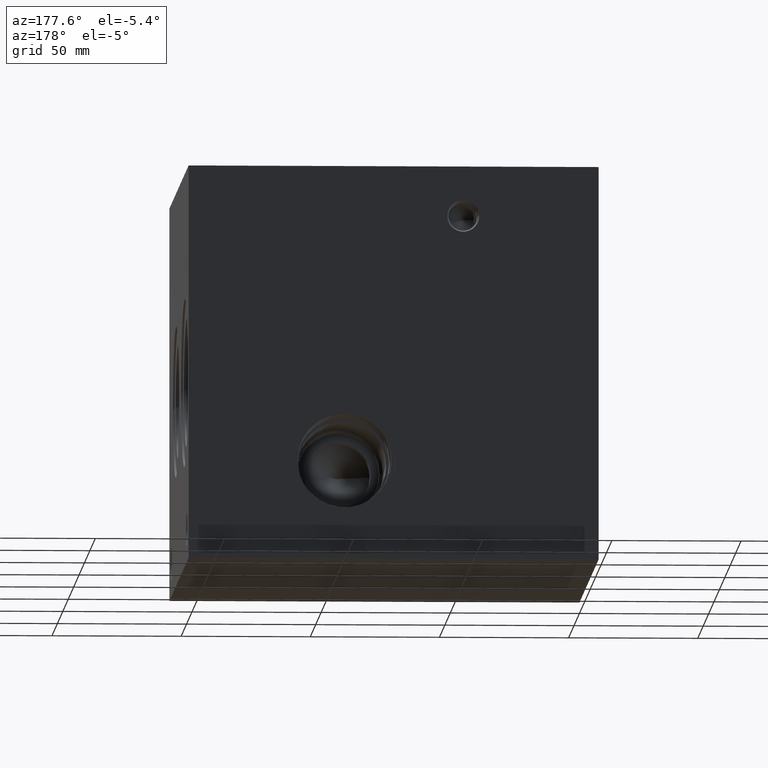
[diagram: clean part render]
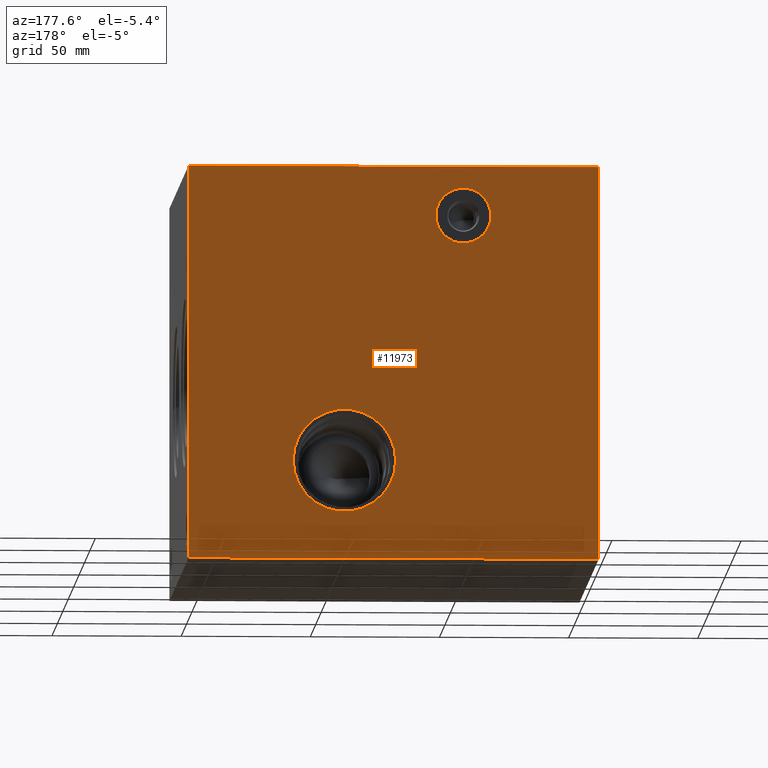
[diagram: same view with one face highlighted and labeled with its STEP entity id]
A machine part, auxiliary view. The second image highlights one B-rep face of the part: STEP entity #11973.
In plain terms, the highlighted planar face has unit normal (0, 1, 0).
Its self-contained STEP definition (entity closure, byte-faithful):
#162=CIRCLE('',#12328,19.8374);
#163=CIRCLE('',#12329,19.8374);
#195=CIRCLE('',#12379,10.6426);
#196=CIRCLE('',#12380,10.6426);
#498=FACE_BOUND('',#2177,.T.);
#499=FACE_BOUND('',#2178,.T.);
#857=PLANE('',#12736);
#1475=FACE_OUTER_BOUND('',#2176,.T.);
#2176=EDGE_LOOP('',(#10714,#10715,#10716,#10717));
#2177=EDGE_LOOP('',(#10718,#10719));
#2178=EDGE_LOOP('',(#10720,#10721));
#2230=LINE('',#15540,#3322);
#2292=LINE('',#15818,#3384);
#3287=LINE('',#20611,#4379);
#3288=LINE('',#20612,#4380);
#3322=VECTOR('',#12796,10.);
#3384=VECTOR('',#12912,10.);
#4379=VECTOR('',#15323,10.);
#4380=VECTOR('',#15324,10.);
#4702=VERTEX_POINT('',#15537);
#4703=VERTEX_POINT('',#15539);
#4761=VERTEX_POINT('',#15811);
#4764=VERTEX_POINT('',#15816);
#5527=VERTEX_POINT('',#19796);
#5528=VERTEX_POINT('',#19797);
#5562=VERTEX_POINT('',#19896);
#5563=VERTEX_POINT('',#19897);
#5856=EDGE_CURVE('',#4702,#4703,#2230,.T.);
#5942=EDGE_CURVE('',#4761,#4764,#2292,.T.);
#7081=EDGE_CURVE('',#5527,#5528,#162,.T.);
#7082=EDGE_CURVE('',#5528,#5527,#163,.T.);
#7128=EDGE_CURVE('',#5562,#5563,#195,.T.);
#7129=EDGE_CURVE('',#5563,#5562,#196,.T.);
#7460=EDGE_CURVE('',#4702,#4761,#3287,.T.);
#7461=EDGE_CURVE('',#4703,#4764,#3288,.T.);
#10714=ORIENTED_EDGE('',*,*,#7460,.T.);
#10715=ORIENTED_EDGE('',*,*,#5942,.T.);
#10716=ORIENTED_EDGE('',*,*,#7461,.F.);
#10717=ORIENTED_EDGE('',*,*,#5856,.F.);
#10718=ORIENTED_EDGE('',*,*,#7081,.T.);
#10719=ORIENTED_EDGE('',*,*,#7082,.T.);
#10720=ORIENTED_EDGE('',*,*,#7128,.T.);
#10721=ORIENTED_EDGE('',*,*,#7129,.T.);
#11973=ADVANCED_FACE('',(#1475,#498,#499),#857,.T.);
#12328=AXIS2_PLACEMENT_3D('',#19798,#14379,#14380);
#12329=AXIS2_PLACEMENT_3D('',#19799,#14381,#14382);
#12379=AXIS2_PLACEMENT_3D('',#19898,#14495,#14496);
#12380=AXIS2_PLACEMENT_3D('',#19899,#14497,#14498);
#12736=AXIS2_PLACEMENT_3D('',#20610,#15321,#15322);
#12796=DIRECTION('',(0.,0.,1.));
#12912=DIRECTION('',(0.,0.,1.));
#14379=DIRECTION('center_axis',(0.,-1.,0.));
#14380=DIRECTION('ref_axis',(1.,0.,0.));
#14381=DIRECTION('center_axis',(0.,-1.,0.));
#14382=DIRECTION('ref_axis',(1.,0.,0.));
#14495=DIRECTION('center_axis',(0.,-1.,0.));
#14496=DIRECTION('ref_axis',(1.,0.,0.));
#14497=DIRECTION('center_axis',(0.,-1.,0.));
#14498=DIRECTION('ref_axis',(1.,0.,0.));
#15321=DIRECTION('center_axis',(0.,1.,0.));
#15322=DIRECTION('ref_axis',(-1.,0.,0.));
#15323=DIRECTION('',(-1.,0.,0.));
#15324=DIRECTION('',(-1.,0.,0.));
#15537=CARTESIAN_POINT('',(158.75,177.8,0.));
#15539=CARTESIAN_POINT('',(158.75,177.8,152.4));
#15540=CARTESIAN_POINT('',(158.75,177.8,0.));
#15811=CARTESIAN_POINT('',(0.,177.8,0.));
#15816=CARTESIAN_POINT('',(0.,177.8,152.4));
#15818=CARTESIAN_POINT('',(0.,177.8,0.));
#19796=CARTESIAN_POINT('',(118.2624,177.8,38.1));
#19797=CARTESIAN_POINT('',(78.5876,177.8,38.1));
#19798=CARTESIAN_POINT('Origin',(98.425,177.8,38.1));
#19799=CARTESIAN_POINT('Origin',(98.425,177.8,38.1));
#19896=CARTESIAN_POINT('',(63.0174,177.8,133.35));
#19897=CARTESIAN_POINT('',(41.7322,177.8,133.35));
#19898=CARTESIAN_POINT('Origin',(52.3748,177.8,133.35));
#19899=CARTESIAN_POINT('Origin',(52.3748,177.8,133.35));
#20610=CARTESIAN_POINT('Origin',(158.75,177.8,0.));
#20611=CARTESIAN_POINT('',(158.75,177.8,0.));
#20612=CARTESIAN_POINT('',(158.75,177.8,152.4));